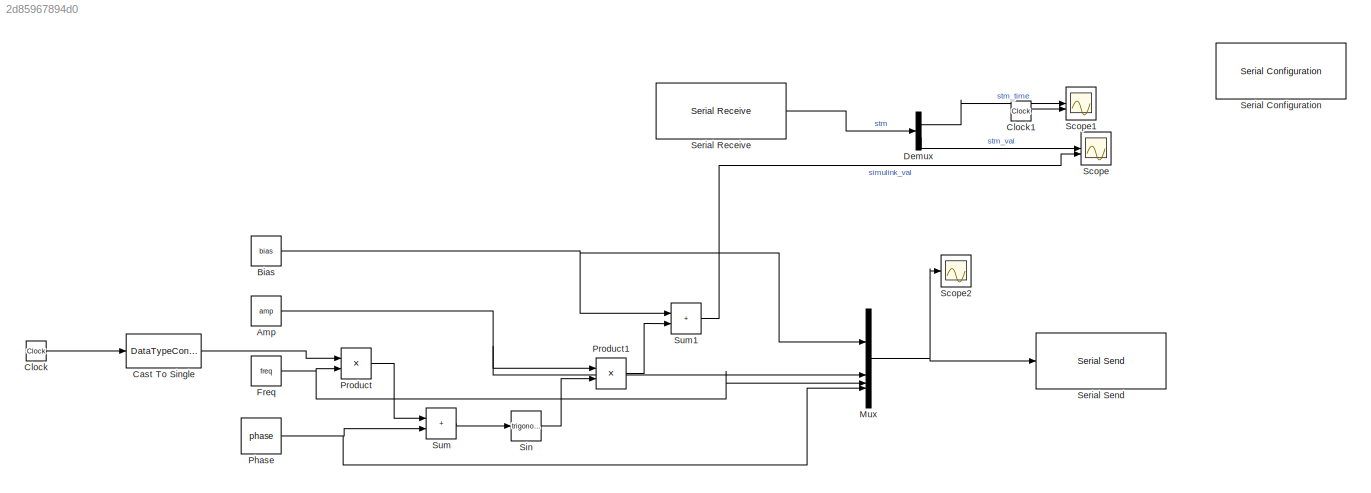
MODEL slx_2d85967894d0
KIND model
CONFIG AbsTol = auto
CONFIG EnableMultiTasking = off
CONFIG FixedStep = 0.001
CONFIG MaxStep = auto
CONFIG MinStep = auto
CONFIG RelTol = 1e-3
CONFIG SampleTimeConstraint = Unconstrained
CONFIG SolverName = FixedStepAuto
CONFIG StartTime = 0.0
CONFIG StopTime = 50
BLOCK [Constant] Amp
  OutDataTypeStr = single
  Value = amp
BLOCK [Constant] Bias
  OutDataTypeStr = single
  Value = bias
BLOCK [DataTypeConversion] Cast To Single
  OutDataTypeStr = single
  RndMeth = Floor
  SaturateOnIntegerOverflow = off
BLOCK [Clock] Clock
BLOCK [Clock] Clock1
BLOCK [Demux] Demux
  Outputs = 2
BLOCK [Constant] Freq
  OutDataTypeStr = single
  Value = freq
BLOCK [Mux] Mux
  DisplayOption = bar
BLOCK [Constant] Phase
  OutDataTypeStr = single
  Value = phase
BLOCK [Product] Product
BLOCK [Product] Product1
BLOCK [Scope] Scope
  Floating = off
  NumInputPorts = 2
  ScopeSpecificationString = Simulink.scopes.TimeScopeBlockCfg('CurrentConfiguration', extmgr.ConfigurationSet(extmgr.Configuration('Core','General UI',true),extmgr.Configuration('Core','Source UI',true),extmgr.Configuration('Sources','WiredSimulink',true),extmgr.Configuration('Visuals','Time Domain',true,'SerializedDisplays',{struct('MinYLimReal','-2.00000','MaxYLimReal','10.00000','YLabelReal','','MinYLimMag','0.00000','Max...<+1492ch>
BLOCK [Scope] Scope1
  Floating = off
  NumInputPorts = 2
  ScopeSpecificationString = Simulink.scopes.TimeScopeBlockCfg('CurrentConfiguration', extmgr.ConfigurationSet(extmgr.Configuration('Core','General UI',true),extmgr.Configuration('Core','Source UI',true),extmgr.Configuration('Sources','WiredSimulink',true,'DataLoggingVariableName','ScopeData1'),extmgr.Configuration('Visuals','Time Domain',true,'SerializedDisplays',{struct('MinYLimReal','-12.5','MaxYLimReal','32.5','YLabelReal...<+1502ch>
BLOCK [Scope] Scope2
  Floating = off
  NumInputPorts = 1
  ScopeSpecificationString = Simulink.scopes.TimeScopeBlockCfg('CurrentConfiguration', extmgr.ConfigurationSet(extmgr.Configuration('Core','General UI',true),extmgr.Configuration('Core','Source UI',true),extmgr.Configuration('Sources','WiredSimulink',true,'DataLoggingVariableName','ScopeData1'),extmgr.Configuration('Visuals','Time Domain',true,'SerializedDisplays',{struct('MinYLimReal','0.9','MaxYLimReal','1.1','YLabelReal','...<+1524ch>
BLOCK [Reference] Serial Configuration  REF=instrumentseriallib/Serial Configuration
  Priority = -200000
  SourceBlock = instrumentseriallib/Serial Configuration
  SourceType = system.SerialConfiguration
BLOCK [Reference] Serial Receive  REF=instrumentseriallib/Serial Receive
  Priority = 1
  SourceBlock = instrumentseriallib/Serial Receive
  SourceType = system.SerialReceive
BLOCK [Reference] Serial Send  REF=instrumentseriallib/Serial Send
  Priority = 1
  SourceBlock = instrumentseriallib/Serial Send
  SourceType = system.SerialSend
BLOCK [Trigonometry] Sin
BLOCK [Sum] Sum
  IconShape = rectangular
BLOCK [Sum] Sum1
  IconShape = rectangular
NET Amp:1 -> Mux:2, Product1:1
NET Bias:1 -> Mux:1, Sum1:1
LINE Cast To Single:1 -> Product:1
LINE Clock1:1 -> Scope1:2
LINE Clock:1 -> Cast To Single:1
LINE Demux:1 -> Scope1:1
LINE Demux:2 -> Scope:1
NET Freq:1 -> Mux:3, Product:2
NET Mux:1 -> Scope2:1, Serial Send:1
NET Phase:1 -> Mux:4, Sum:2
LINE Product1:1 -> Sum1:2
LINE Product:1 -> Sum:1
LINE Serial Receive:1 -> Demux:1
LINE Sin:1 -> Product1:2
LINE Sum1:1 -> Scope:2
LINE Sum:1 -> Sin:1
note: NET lines group one-source signal fan-out (src -> all destinations, sorted); 1:1 wires keep LINE
